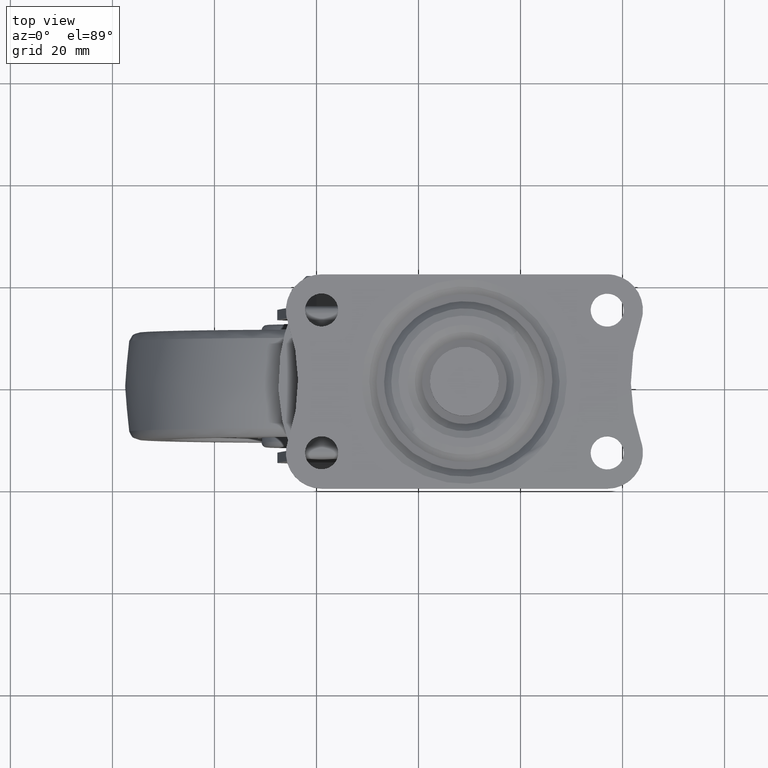
[diagram: clean part render]
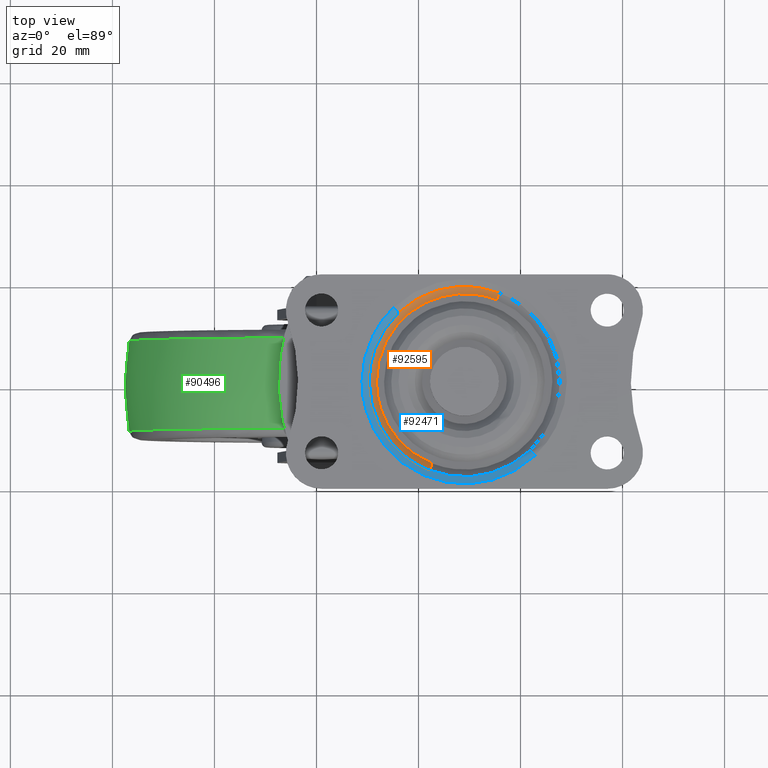
[diagram: same view with three faces highlighted in distinct colors, each labeled with its STEP entity id]
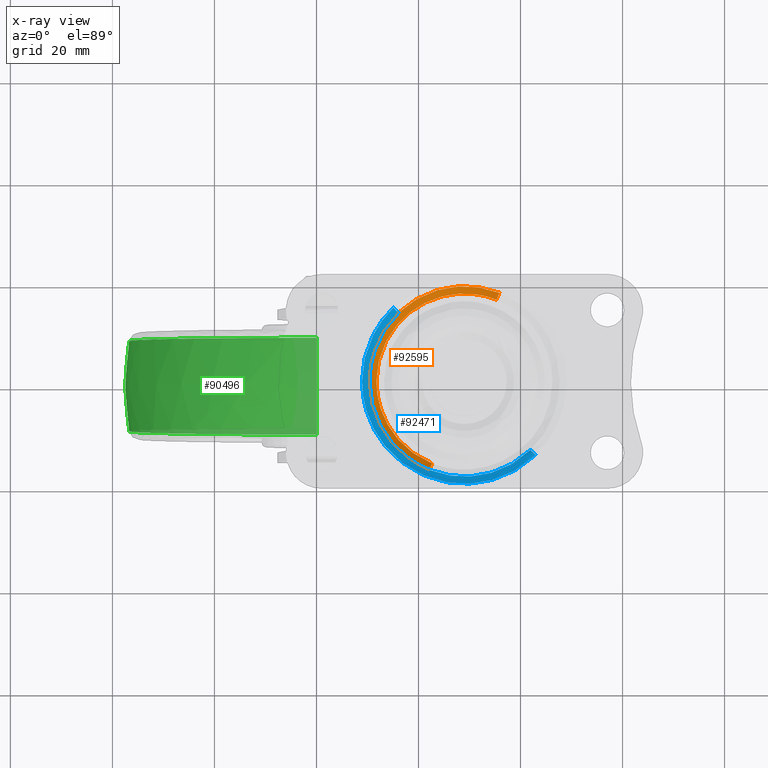
[diagram: x-ray of the same camera — body ghosted, the three highlighted faces saturated]
A machine part, top view with three faces highlighted in distinct colors.
The next image is the same camera in x-ray (body ghosted, the three faces saturated) — at least one of them is partly hidden behind the body in this view.
Their STEP definitions:

[orange] entity #92595 — the highlighted face is a freeform B-spline surface patch.
#92349=CARTESIAN_POINT('',(16.053506560755469,13.444001472760540,53.914213564251533));
#92350=VERTEX_POINT('',#92349);
#92364=CARTESIAN_POINT('',(35.840457166666390,17.365512191501889,53.914213563199887));
#92365=VERTEX_POINT('',#92364);
#92366=CARTESIAN_POINT('',(35.840457166666397,17.365512191501892,53.914213563199901));
#92367=CARTESIAN_POINT('',(32.543511662624219,18.664213563321823,53.914213563414265));
#92368=CARTESIAN_POINT('',(28.999999999106961,18.664213563427431,53.914213563616677));
#92369=CARTESIAN_POINT('',(21.474321036124127,18.664213563651721,53.914213564046555));
#92370=CARTESIAN_POINT('',(16.053506560755466,13.444001472760538,53.914213564251540));
#92378=(BOUNDED_CURVE()B_SPLINE_CURVE(2,(#92366,#92367,#92368,#92369,#92370),.UNSPECIFIED.,.F.,.U.)B_SPLINE_CURVE_WITH_KNOTS((3,2,3),(0.375539285770199,0.500000000000000,0.744311474874833),.UNSPECIFIED.)CURVE()GEOMETRIC_REPRESENTATION_ITEM()RATIONAL_B_SPLINE_CURVE((0.890481630690211,0.927092601586825,1.0,0.856885651461697,0.853629213191968))REPRESENTATION_ITEM(''));
#92379=EDGE_CURVE('',#92365,#92350,#92378,.T.);
#92420=CARTESIAN_POINT('',(22.159542833333610,-17.365512191501860,53.914213563199922));
#92421=VERTEX_POINT('',#92420);
#92437=CARTESIAN_POINT('',(10.335786437626901,1.421085E-014,53.914213562373199));
#92438=VERTEX_POINT('',#92437);
#92439=CARTESIAN_POINT('',(10.335786437626901,1.421085E-014,53.914213562373199));
#92440=CARTESIAN_POINT('',(10.335786437789448,-12.708010685137397,53.914213562575213));
#92441=CARTESIAN_POINT('',(22.159542833333610,-17.365512191501864,53.914213563199922));
#92449=(BOUNDED_CURVE()B_SPLINE_CURVE(2,(#92439,#92440,#92441),.UNSPECIFIED.,.F.,.U.)B_SPLINE_CURVE_WITH_KNOTS((3,3),(0.0,0.375539285770199),.UNSPECIFIED.)CURVE()GEOMETRIC_REPRESENTATION_ITEM()RATIONAL_B_SPLINE_CURVE((1.0,0.780014179599723,0.890481630690211))REPRESENTATION_ITEM(''));
#92450=EDGE_CURVE('',#92438,#92421,#92449,.T.);
#92452=CARTESIAN_POINT('',(16.053506560755466,13.444001472760538,53.914213564251540));
#92453=CARTESIAN_POINT('',(10.335786436975427,7.937871007253816,53.914213563312352));
#92454=CARTESIAN_POINT('',(10.335786437626901,1.421085E-014,53.914213562373199));
#92462=(BOUNDED_CURVE()B_SPLINE_CURVE(2,(#92452,#92453,#92454),.UNSPECIFIED.,.F.,.U.)B_SPLINE_CURVE_WITH_KNOTS((3,3),(0.744311474874833,1.0),.UNSPECIFIED.)CURVE()GEOMETRIC_REPRESENTATION_ITEM()RATIONAL_B_SPLINE_CURVE((0.853629213191968,0.850221129724851,1.0))REPRESENTATION_ITEM(''));
#92463=EDGE_CURVE('',#92350,#92438,#92462,.T.);
#92493=CARTESIAN_POINT('',(35.322146161153633,16.049703047643501,52.500000000015262));
#92494=VERTEX_POINT('',#92493);
#92495=CARTESIAN_POINT('',(35.322146161153633,16.049703047643501,52.500000000015262));
#92496=CARTESIAN_POINT('',(35.840457166666390,17.365512191501889,53.914213563199887));
#92497=QUASI_UNIFORM_CURVE('',1,(#92495,#92496),.UNSPECIFIED.,.F.,.U.);
#92498=EDGE_CURVE('',#92494,#92365,#92497,.T.);
#92515=CARTESIAN_POINT('',(22.677853838846371,-16.049703047643479,52.500000000015262));
#92516=VERTEX_POINT('',#92515);
#92532=CARTESIAN_POINT('',(22.677853838846371,-16.049703047643479,52.500000000015262));
#92533=CARTESIAN_POINT('',(22.159542833333610,-17.365512191501860,53.914213563199922));
#92534=QUASI_UNIFORM_CURVE('',1,(#92532,#92533),.UNSPECIFIED.,.F.,.U.);
#92535=EDGE_CURVE('',#92516,#92421,#92534,.T.);
#92540=CARTESIAN_POINT('',(35.309188385840407,16.016807819063470,52.464644660893697));
#92541=CARTESIAN_POINT('',(19.292380566776963,22.325996204903880,52.464644660893704));
#92542=CARTESIAN_POINT('',(12.983192180936550,6.309188385840424,52.464644660893697));
#92543=CARTESIAN_POINT('',(6.674003795096137,-9.707619433223027,52.464644660893704));
#92544=CARTESIAN_POINT('',(22.690811614159589,-16.016807819063441,52.464644660893697));
#92545=CARTESIAN_POINT('',(35.853738886675004,17.399229802090151,53.950452786835477));
#92546=CARTESIAN_POINT('',(18.454509084584874,24.252968688765151,53.950452786835477));
#92547=CARTESIAN_POINT('',(11.600770197909871,6.853738886675016,53.950452786835477));
#92548=CARTESIAN_POINT('',(4.747031311234864,-10.545490915415117,53.950452786835477));
#92549=CARTESIAN_POINT('',(22.146261113325000,-17.399229802090119,53.950452786835477));
#92557=(BOUNDED_SURFACE()B_SPLINE_SURFACE(2,1,((#92540,#92545),(#92541,#92546),(#92542,#92547),(#92543,#92548),(#92544,#92549)),.UNSPECIFIED.,.F.,.F.,.U.)B_SPLINE_SURFACE_WITH_KNOTS((3,2,3),(2,2),(0.0,30.983924667299981,61.967849334599947),(0.0,2.101250002791014),.UNSPECIFIED.)GEOMETRIC_REPRESENTATION_ITEM()RATIONAL_B_SPLINE_SURFACE(((1.0,1.0),(0.707106781186548,0.707106781186548),(1.0,1.0),(0.707106781186548,0.707106781186548),(1.0,1.0)))REPRESENTATION_ITEM('')SURFACE());
#92558=ORIENTED_EDGE('',*,*,#92450,.T.);
#92559=ORIENTED_EDGE('',*,*,#92535,.F.);
#92560=CARTESIAN_POINT('',(11.750000000000000,1.421085E-014,52.500000000000000));
#92561=VERTEX_POINT('',#92560);
#92562=CARTESIAN_POINT('',(22.677853838846367,-16.049703047643472,52.500000000015262));
#92563=CARTESIAN_POINT('',(11.749999999997209,-11.745106944402576,52.500000000007638));
#92564=CARTESIAN_POINT('',(11.750000000000000,1.421085E-014,52.500000000000000));
#92572=(BOUNDED_CURVE()B_SPLINE_CURVE(2,(#92562,#92563,#92564),.UNSPECIFIED.,.F.,.U.)B_SPLINE_CURVE_WITH_KNOTS((3,3),(0.812230357108880,1.0),.UNSPECIFIED.)CURVE()GEOMETRIC_REPRESENTATION_ITEM()RATIONAL_B_SPLINE_CURVE((0.890481630697295,0.780014179592670,1.0))REPRESENTATION_ITEM(''));
#92573=EDGE_CURVE('',#92516,#92561,#92572,.T.);
#92574=ORIENTED_EDGE('',*,*,#92573,.T.);
#92575=CARTESIAN_POINT('',(11.750000000000000,1.421085E-014,52.500000000000000));
#92576=CARTESIAN_POINT('',(11.750000000001902,17.250000000004842,52.500000000005194));
#92577=CARTESIAN_POINT('',(29.000000000004690,17.250000000011941,52.500000000012818));
#92578=CARTESIAN_POINT('',(32.275014828930779,17.250000000013287,52.500000000014268));
#92579=CARTESIAN_POINT('',(35.322146161153626,16.049703047643508,52.500000000015255));
#92587=(BOUNDED_CURVE()B_SPLINE_CURVE(2,(#92575,#92576,#92577,#92578,#92579),.UNSPECIFIED.,.F.,.U.)B_SPLINE_CURVE_WITH_KNOTS((3,2,3),(0.0,0.250000000000000,0.312230357108880),.UNSPECIFIED.)CURVE()GEOMETRIC_REPRESENTATION_ITEM()RATIONAL_B_SPLINE_CURVE((1.0,0.707106781186548,1.0,0.927092601593878,0.890481630697295))REPRESENTATION_ITEM(''));
#92588=EDGE_CURVE('',#92561,#92494,#92587,.T.);
#92589=ORIENTED_EDGE('',*,*,#92588,.T.);
#92590=ORIENTED_EDGE('',*,*,#92498,.T.);
#92591=ORIENTED_EDGE('',*,*,#92379,.T.);
#92592=ORIENTED_EDGE('',*,*,#92463,.T.);
#92593=EDGE_LOOP('',(#92558,#92559,#92574,#92589,#92590,#92591,#92592));
#92594=FACE_OUTER_BOUND('',#92593,.T.);
#92595=ADVANCED_FACE('',(#92594),#92557,.F.);

[blue] entity #92471 — the highlighted face is a freeform B-spline surface patch.
#91963=CARTESIAN_POINT('',(8.921572875253803,1.421085E-014,54.500000000000000));
#91964=VERTEX_POINT('',#91963);
#91965=CARTESIAN_POINT('',(15.072532652078930,14.462672260700760,54.500000000000000));
#91966=VERTEX_POINT('',#91965);
#91967=CARTESIAN_POINT('',(8.921572875253803,1.421085E-014,54.500000000000000));
#91968=CARTESIAN_POINT('',(8.921572876600223,8.539334591965433,54.500000000000000));
#91969=CARTESIAN_POINT('',(15.072532652078927,14.462672260700758,54.500000000000000));
#91977=(BOUNDED_CURVE()B_SPLINE_CURVE(2,(#91967,#91968,#91969),.UNSPECIFIED.,.F.,.U.)B_SPLINE_CURVE_WITH_KNOTS((3,3),(0.500000000000000,0.627844262562516),.UNSPECIFIED.)CURVE()GEOMETRIC_REPRESENTATION_ITEM()RATIONAL_B_SPLINE_CURVE((1.0,0.850221129724930,0.853629213191965))REPRESENTATION_ITEM(''));
#91978=EDGE_CURVE('',#91964,#91966,#91977,.T.);
#91997=CARTESIAN_POINT('',(42.927467347921073,-14.462672260700730,54.500000000000000));
#91998=VERTEX_POINT('',#91997);
#92012=CARTESIAN_POINT('',(42.927467347921088,-14.462672260700732,54.500000000000000));
#92013=CARTESIAN_POINT('',(37.095910179446307,-20.078427122189627,54.500000000000021));
#92014=CARTESIAN_POINT('',(28.999999998080948,-20.078427122753389,54.500000000000007));
#92015=CARTESIAN_POINT('',(8.921572874681171,-20.078427124151546,54.500000000000014));
#92016=CARTESIAN_POINT('',(8.921572875253803,1.421085E-014,54.500000000000000));
#92024=(BOUNDED_CURVE()B_SPLINE_CURVE(2,(#92012,#92013,#92014,#92015,#92016),.UNSPECIFIED.,.F.,.U.)B_SPLINE_CURVE_WITH_KNOTS((3,2,3),(0.127844262562516,0.250000000000000,0.500000000000000),.UNSPECIFIED.)CURVE()GEOMETRIC_REPRESENTATION_ITEM()RATIONAL_B_SPLINE_CURVE((0.853629213191965,0.856885651461617,1.0,0.707106781186548,1.0))REPRESENTATION_ITEM(''));
#92025=EDGE_CURVE('',#91998,#91964,#92024,.T.);
#92317=CARTESIAN_POINT('',(41.946493439244527,-13.444001472760521,53.914213564251533));
#92318=VERTEX_POINT('',#92317);
#92334=CARTESIAN_POINT('',(42.927467347921080,-14.462672260700725,54.499999999999993));
#92335=CARTESIAN_POINT('',(42.352826136869247,-13.865948729046366,54.499999998391978));
#92336=CARTESIAN_POINT('',(41.946493439244534,-13.444001472760513,53.914213564251533));
#92344=(BOUNDED_CURVE()B_SPLINE_CURVE(2,(#92334,#92335,#92336),.UNSPECIFIED.,.F.,.U.)B_SPLINE_CURVE_WITH_KNOTS((3,3),(-1.556175676471987,-0.434617039812090),.UNSPECIFIED.)CURVE()GEOMETRIC_REPRESENTATION_ITEM()RATIONAL_B_SPLINE_CURVE((0.922813124429441,0.853101096809173,0.923967181400762))REPRESENTATION_ITEM(''));
#92345=EDGE_CURVE('',#91998,#92318,#92344,.T.);
#92349=CARTESIAN_POINT('',(16.053506560755469,13.444001472760540,53.914213564251533));
#92350=VERTEX_POINT('',#92349);
#92351=CARTESIAN_POINT('',(15.072532652078932,14.462672260700760,54.500000000000000));
#92352=CARTESIAN_POINT('',(15.647173863130755,13.865948729046387,54.499999998391992));
#92353=CARTESIAN_POINT('',(16.053506560755469,13.444001472760538,53.914213564251519));
#92361=(BOUNDED_CURVE()B_SPLINE_CURVE(2,(#92351,#92352,#92353),.UNSPECIFIED.,.F.,.U.)B_SPLINE_CURVE_WITH_KNOTS((3,3),(-1.556175676471984,-0.434617039812081),.UNSPECIFIED.)CURVE()GEOMETRIC_REPRESENTATION_ITEM()RATIONAL_B_SPLINE_CURVE((0.922813124429441,0.853101096809173,0.923967181400764))REPRESENTATION_ITEM(''));
#92362=EDGE_CURVE('',#91966,#92350,#92361,.T.);
#92397=CARTESIAN_POINT('',(15.019681321768207,14.517554562706806,54.498548140626717));
#92398=CARTESIAN_POINT('',(0.502126759061422,0.537235884475016,54.498548140626703));
#92399=CARTESIAN_POINT('',(14.482445437293208,-13.980318678231775,54.498548140626717));
#92400=CARTESIAN_POINT('',(28.462764115524994,-28.497873240938571,54.498548140626703));
#92401=CARTESIAN_POINT('',(42.980318678231782,-14.517554562706785,54.498548140626717));
#92402=CARTESIAN_POINT('',(15.656776249637824,13.855977341911954,54.533563655297577));
#92403=CARTESIAN_POINT('',(1.800798907725890,0.512753591549783,54.533563655297577));
#92404=CARTESIAN_POINT('',(15.144022658088060,-13.343223750362155,54.533563655297577));
#92405=CARTESIAN_POINT('',(28.487246408450222,-27.199201092274105,54.533563655297577));
#92406=CARTESIAN_POINT('',(42.343223750362164,-13.855977341911931,54.533563655297577));
#92407=CARTESIAN_POINT('',(16.090119026032003,13.405982063159621,53.859383605379819));
#92408=CARTESIAN_POINT('',(2.684136962872396,0.496101089191631,53.859383605379840));
#92409=CARTESIAN_POINT('',(15.594017936840384,-12.909880973967981,53.859383605379819));
#92410=CARTESIAN_POINT('',(28.503898910808388,-26.315863037127592,53.859383605379840));
#92411=CARTESIAN_POINT('',(41.909880973967994,-13.405982063159602,53.859383605379819));
#92419=(BOUNDED_SURFACE()B_SPLINE_SURFACE(2,2,((#92397,#92402,#92407),(#92398,#92403,#92408),(#92399,#92404,#92409),(#92400,#92405,#92410),(#92401,#92406,#92411)),.UNSPECIFIED.,.F.,.F.,.U.)B_SPLINE_SURFACE_WITH_KNOTS((3,2,3),(3,3),(0.0,33.393267525978032,66.786535051956051),(0.0,1.750269564119279),.UNSPECIFIED.)GEOMETRIC_REPRESENTATION_ITEM()RATIONAL_B_SPLINE_SURFACE(((0.930128103351805,0.845728475102868,0.931397445818924),(0.657699889252243,0.598020339787796,0.658597449918391),(0.930128103351805,0.845728475102868,0.931397445818924),(0.657699889252243,0.598020339787796,0.658597449918391),(0.930128103351805,0.845728475102868,0.931397445818924)))REPRESENTATION_ITEM('')SURFACE());
#92420=CARTESIAN_POINT('',(22.159542833333610,-17.365512191501860,53.914213563199922));
#92421=VERTEX_POINT('',#92420);
#92422=CARTESIAN_POINT('',(22.159542833333610,-17.365512191501864,53.914213563199922));
#92423=CARTESIAN_POINT('',(25.456488337375784,-18.664213563321805,53.914213563414300));
#92424=CARTESIAN_POINT('',(29.000000000893049,-18.664213563427410,53.914213563616713));
#92425=CARTESIAN_POINT('',(36.525678963875855,-18.664213563651696,53.914213564046570));
#92426=CARTESIAN_POINT('',(41.946493439244534,-13.444001472760513,53.914213564251540));
#92434=(BOUNDED_CURVE()B_SPLINE_CURVE(2,(#92422,#92423,#92424,#92425,#92426),.UNSPECIFIED.,.F.,.U.)B_SPLINE_CURVE_WITH_KNOTS((3,2,3),(0.375539285770199,0.500000000000000,0.744311474874833),.UNSPECIFIED.)CURVE()GEOMETRIC_REPRESENTATION_ITEM()RATIONAL_B_SPLINE_CURVE((0.890481630690211,0.927092601586824,1.0,0.856885651461697,0.853629213191968))REPRESENTATION_ITEM(''));
#92435=EDGE_CURVE('',#92421,#92318,#92434,.T.);
#92436=ORIENTED_EDGE('',*,*,#92435,.F.);
#92437=CARTESIAN_POINT('',(10.335786437626901,1.421085E-014,53.914213562373199));
#92438=VERTEX_POINT('',#92437);
#92439=CARTESIAN_POINT('',(10.335786437626901,1.421085E-014,53.914213562373199));
#92440=CARTESIAN_POINT('',(10.335786437789448,-12.708010685137397,53.914213562575213));
#92441=CARTESIAN_POINT('',(22.159542833333610,-17.365512191501864,53.914213563199922));
#92449=(BOUNDED_CURVE()B_SPLINE_CURVE(2,(#92439,#92440,#92441),.UNSPECIFIED.,.F.,.U.)B_SPLINE_CURVE_WITH_KNOTS((3,3),(0.0,0.375539285770199),.UNSPECIFIED.)CURVE()GEOMETRIC_REPRESENTATION_ITEM()RATIONAL_B_SPLINE_CURVE((1.0,0.780014179599723,0.890481630690211))REPRESENTATION_ITEM(''));
#92450=EDGE_CURVE('',#92438,#92421,#92449,.T.);
#92451=ORIENTED_EDGE('',*,*,#92450,.F.);
#92452=CARTESIAN_POINT('',(16.053506560755466,13.444001472760538,53.914213564251540));
#92453=CARTESIAN_POINT('',(10.335786436975427,7.937871007253816,53.914213563312352));
#92454=CARTESIAN_POINT('',(10.335786437626901,1.421085E-014,53.914213562373199));
#92462=(BOUNDED_CURVE()B_SPLINE_CURVE(2,(#92452,#92453,#92454),.UNSPECIFIED.,.F.,.U.)B_SPLINE_CURVE_WITH_KNOTS((3,3),(0.744311474874833,1.0),.UNSPECIFIED.)CURVE()GEOMETRIC_REPRESENTATION_ITEM()RATIONAL_B_SPLINE_CURVE((0.853629213191968,0.850221129724851,1.0))REPRESENTATION_ITEM(''));
#92463=EDGE_CURVE('',#92350,#92438,#92462,.T.);
#92464=ORIENTED_EDGE('',*,*,#92463,.F.);
#92465=ORIENTED_EDGE('',*,*,#92362,.F.);
#92466=ORIENTED_EDGE('',*,*,#91978,.F.);
#92467=ORIENTED_EDGE('',*,*,#92025,.F.);
#92468=ORIENTED_EDGE('',*,*,#92345,.T.);
#92469=EDGE_LOOP('',(#92436,#92451,#92464,#92465,#92466,#92467,#92468));
#92470=FACE_OUTER_BOUND('',#92469,.T.);
#92471=ADVANCED_FACE('',(#92470),#92419,.T.);

[green] entity #90496 — the highlighted face is a freeform B-spline surface patch.
#89469=CARTESIAN_POINT('',(-36.059571238877233,-8.854141052839481,-6.878695499198086));
#89470=VERTEX_POINT('',#89469);
#89471=CARTESIAN_POINT('',(0.0,-8.854141030370155,36.709798001895791));
#89472=VERTEX_POINT('',#89471);
#89473=CARTESIAN_POINT('',(-36.059571238877233,-8.854141052839481,-6.878695499198086));
#89474=CARTESIAN_POINT('',(-36.709795824790099,-8.854141051962236,-3.470079949706436));
#89475=CARTESIAN_POINT('',(-36.709795721415510,-8.854141050901333,-0.000000381198239));
#89476=CARTESIAN_POINT('',(-36.709794627820919,-8.854141039678096,36.709797829315811));
#89477=CARTESIAN_POINT('',(0.0,-8.854141030370155,36.709798001895791));
#89485=(BOUNDED_CURVE()B_SPLINE_CURVE(2,(#89473,#89474,#89475,#89476,#89477),.UNSPECIFIED.,.F.,.U.)B_SPLINE_CURVE_WITH_KNOTS((3,2,3),(0.717838794632227,0.750000000000000,1.0),.UNSPECIFIED.)CURVE()GEOMETRIC_REPRESENTATION_ITEM()RATIONAL_B_SPLINE_CURVE((0.934336075156441,0.962320804155649,1.0,0.707106781186547,1.0))REPRESENTATION_ITEM(''));
#89486=EDGE_CURVE('',#89470,#89472,#89485,.T.);
#89589=CARTESIAN_POINT('',(0.0,-8.854141030313910,-36.709798001905938));
#89590=VERTEX_POINT('',#89589);
#89591=CARTESIAN_POINT('',(0.0,-8.854141030313910,-36.709798001905938));
#89592=CARTESIAN_POINT('',(-30.369013699194149,-8.854141041565267,-36.709798210519097));
#89593=CARTESIAN_POINT('',(-36.059571238877233,-8.854141052839481,-6.878695499198086));
#89601=(BOUNDED_CURVE()B_SPLINE_CURVE(2,(#89591,#89592,#89593),.UNSPECIFIED.,.F.,.U.)B_SPLINE_CURVE_WITH_KNOTS((3,3),(0.500000000000000,0.717838794632227),.UNSPECIFIED.)CURVE()GEOMETRIC_REPRESENTATION_ITEM()RATIONAL_B_SPLINE_CURVE((1.0,0.744785977030898,0.934336075156441))REPRESENTATION_ITEM(''));
#89602=EDGE_CURVE('',#89590,#89470,#89601,.T.);
#90365=CARTESIAN_POINT('',(0.0,8.854141442671239,36.709797927712167));
#90366=VERTEX_POINT('',#90365);
#90367=CARTESIAN_POINT('',(0.0,8.854141442671239,36.709797927712167));
#90368=CARTESIAN_POINT('',(0.0,4.462332177064477,37.500000322551401));
#90369=CARTESIAN_POINT('',(0.0,2.083152E-014,37.500000322551337));
#90370=CARTESIAN_POINT('',(0.0,-4.462331965935237,37.500000322551294));
#90371=CARTESIAN_POINT('',(0.0,-8.854141030370155,36.709798001895791));
#90379=(BOUNDED_CURVE()B_SPLINE_CURVE(2,(#90367,#90368,#90369,#90370,#90371),.UNSPECIFIED.,.F.,.U.)B_SPLINE_CURVE_WITH_KNOTS((3,2,3),(0.429288688575689,0.500000000000000,0.570711308177793),.UNSPECIFIED.)CURVE()GEOMETRIC_REPRESENTATION_ITEM()RATIONAL_B_SPLINE_CURVE((0.949140928197811,0.970381777370532,1.0,0.970381778730372,0.949140930148243))REPRESENTATION_ITEM(''));
#90380=EDGE_CURVE('',#90366,#89472,#90379,.T.);
#90384=CARTESIAN_POINT('',(0.0,8.854141384151184,-36.709797605241263));
#90385=VERTEX_POINT('',#90384);
#90386=CARTESIAN_POINT('',(0.0,8.854141384151184,-36.709797605241263));
#90387=CARTESIAN_POINT('',(0.0,5.842791382703950,-37.251939848473157));
#90388=CARTESIAN_POINT('',(0.0,-0.094200836222783,-37.764556794152888));
#90389=CARTESIAN_POINT('',(0.0,-6.025283330937782,-37.219014017948112));
#90390=CARTESIAN_POINT('',(0.0,-8.854141030313910,-36.709798001905938));
#90391=B_SPLINE_CURVE_WITH_KNOTS('',3,(#90386,#90387,#90388,#90389,#90390),.UNSPECIFIED.,.F.,.U.,(4,1,4),(-3.286289E-009,9.179251066004989,17.802186630927949),.UNSPECIFIED.);
#90392=EDGE_CURVE('',#90385,#89590,#90391,.T.);
#90427=CARTESIAN_POINT('',(0.0,9.751719845165511,-36.539820147115222));
#90428=CARTESIAN_POINT('',(0.0,4.923130832972114,-37.500000000000014));
#90429=CARTESIAN_POINT('',(0.0,0.0,-37.500000000000007));
#90430=CARTESIAN_POINT('',(0.0,-4.923130832972117,-37.500000000000014));
#90431=CARTESIAN_POINT('',(0.0,-9.751719845165518,-36.539820147115222));
#90432=CARTESIAN_POINT('',(-36.539820147115215,9.751719845165511,-36.539820147115215));
#90433=CARTESIAN_POINT('',(-37.500000000000007,4.923130832972113,-37.500000000000021));
#90434=CARTESIAN_POINT('',(-37.500000000000007,0.0,-37.500000000000007));
#90435=CARTESIAN_POINT('',(-37.500000000000014,-4.923130832972118,-37.500000000000014));
#90436=CARTESIAN_POINT('',(-36.539820147115215,-9.751719845165516,-36.539820147115215));
#90437=CARTESIAN_POINT('',(-36.539820147115208,9.751719845165511,-5.204170E-015));
#90438=CARTESIAN_POINT('',(-37.500000000000014,4.923130832972114,-5.204170E-015));
#90439=CARTESIAN_POINT('',(-37.500000000000007,0.0,-5.204170E-015));
#90440=CARTESIAN_POINT('',(-37.500000000000014,-4.923130832972117,-5.204170E-015));
#90441=CARTESIAN_POINT('',(-36.539820147115201,-9.751719845165518,-5.204170E-015));
#90442=CARTESIAN_POINT('',(-36.539820147115215,9.751719845165511,36.539820147115194));
#90443=CARTESIAN_POINT('',(-37.500000000000007,4.923130832972113,37.499999999999993));
#90444=CARTESIAN_POINT('',(-37.500000000000007,0.0,37.499999999999993));
#90445=CARTESIAN_POINT('',(-37.500000000000014,-4.923130832972118,37.500000000000000));
#90446=CARTESIAN_POINT('',(-36.539820147115215,-9.751719845165516,36.539820147115194));
#90447=CARTESIAN_POINT('',(0.0,9.751719845165511,36.539820147115194));
#90448=CARTESIAN_POINT('',(0.0,4.923130832972114,37.500000000000000));
#90449=CARTESIAN_POINT('',(0.0,0.0,37.500000000000000));
#90450=CARTESIAN_POINT('',(0.0,-4.923130832972117,37.500000000000000));
#90451=CARTESIAN_POINT('',(0.0,-9.751719845165518,36.539820147115194));
#90459=(BOUNDED_SURFACE()B_SPLINE_SURFACE(2,2,((#90427,#90432,#90437,#90442,#90447),(#90428,#90433,#90438,#90443,#90448),(#90429,#90434,#90439,#90444,#90449),(#90430,#90435,#90440,#90445,#90450),(#90431,#90436,#90441,#90446,#90451)),.UNSPECIFIED.,.F.,.F.,.U.)B_SPLINE_SURFACE_WITH_KNOTS((3,2,3),(3,2,3),(0.0,10.080100119215530,20.160200238431070),(0.0,62.132034355964279,124.264068711928600),.UNSPECIFIED.)GEOMETRIC_REPRESENTATION_ITEM()RATIONAL_B_SPLINE_SURFACE(((0.944980610738545,0.668202197943030,0.944980610738545,0.668202197943030,0.944980610738545),(0.967422915430767,0.684071303776356,0.967422915430767,0.684071303776356,0.967422915430767),(1.0,0.707106781186548,1.0,0.707106781186548,1.0),(0.967422915430767,0.684071303776356,0.967422915430767,0.684071303776356,0.967422915430767),(0.944980610738545,0.668202197943030,0.944980610738545,0.668202197943030,0.944980610738545)))REPRESENTATION_ITEM('')SURFACE());
#90460=ORIENTED_EDGE('',*,*,#90380,.F.);
#90461=CARTESIAN_POINT('',(-36.143155553114767,8.854141855718858,6.425060734077912));
#90462=VERTEX_POINT('',#90461);
#90463=CARTESIAN_POINT('',(-36.143155553114781,8.854141855718858,6.425060734077912));
#90464=CARTESIAN_POINT('',(-30.759528579526560,8.854141661264448,36.709798140266372));
#90465=CARTESIAN_POINT('',(0.0,8.854141442671239,36.709797927712167));
#90473=(BOUNDED_CURVE()B_SPLINE_CURVE(2,(#90463,#90464,#90465),.UNSPECIFIED.,.F.,.U.)B_SPLINE_CURVE_WITH_KNOTS((3,3),(0.780081742423459,1.0),.UNSPECIFIED.)CURVE()GEOMETRIC_REPRESENTATION_ITEM()RATIONAL_B_SPLINE_CURVE((0.937995448659303,0.742349734650244,1.0))REPRESENTATION_ITEM(''));
#90474=EDGE_CURVE('',#90462,#90366,#90473,.T.);
#90475=ORIENTED_EDGE('',*,*,#90474,.F.);
#90476=CARTESIAN_POINT('',(0.0,8.854141384151184,-36.709797605241263));
#90477=CARTESIAN_POINT('',(-36.709794079885818,8.854141567312761,-36.709797427139840));
#90478=CARTESIAN_POINT('',(-36.709795275576170,8.854141815166043,0.000000551891124));
#90479=CARTESIAN_POINT('',(-36.709795381026701,8.854141837024763,3.237517249246964));
#90480=CARTESIAN_POINT('',(-36.143155553114781,8.854141855718858,6.425060734077912));
#90488=(BOUNDED_CURVE()B_SPLINE_CURVE(2,(#90476,#90477,#90478,#90479,#90480),.UNSPECIFIED.,.F.,.U.)B_SPLINE_CURVE_WITH_KNOTS((3,2,3),(0.500000000000000,0.750000000000000,0.780081742423459),.UNSPECIFIED.)CURVE()GEOMETRIC_REPRESENTATION_ITEM()RATIONAL_B_SPLINE_CURVE((1.0,0.707106781186548,1.0,0.964757046536304,0.937995448659303))REPRESENTATION_ITEM(''));
#90489=EDGE_CURVE('',#90385,#90462,#90488,.T.);
#90490=ORIENTED_EDGE('',*,*,#90489,.F.);
#90491=ORIENTED_EDGE('',*,*,#90392,.T.);
#90492=ORIENTED_EDGE('',*,*,#89602,.T.);
#90493=ORIENTED_EDGE('',*,*,#89486,.T.);
#90494=EDGE_LOOP('',(#90460,#90475,#90490,#90491,#90492,#90493));
#90495=FACE_OUTER_BOUND('',#90494,.T.);
#90496=ADVANCED_FACE('',(#90495),#90459,.T.);